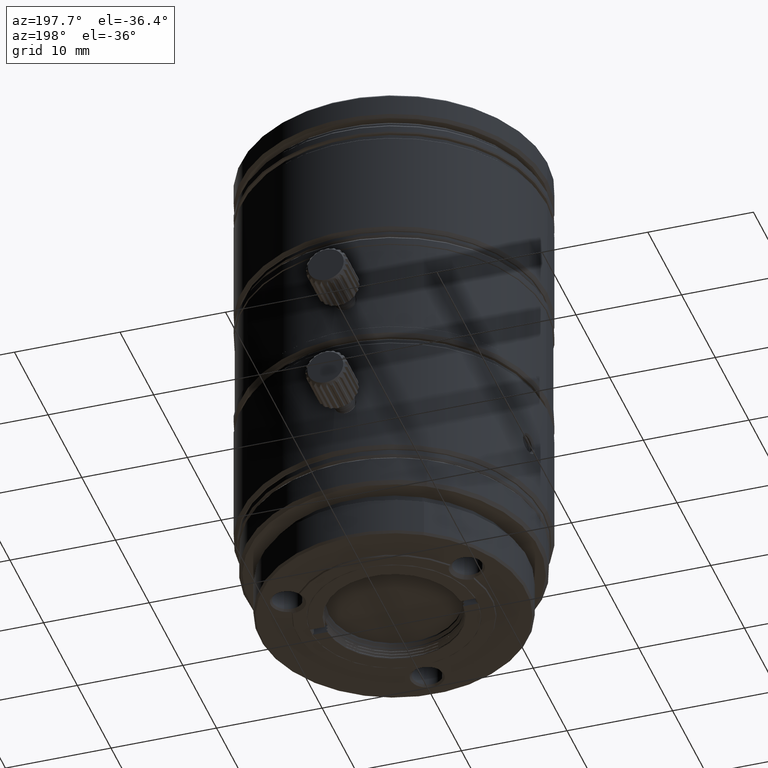
[diagram: clean part render]
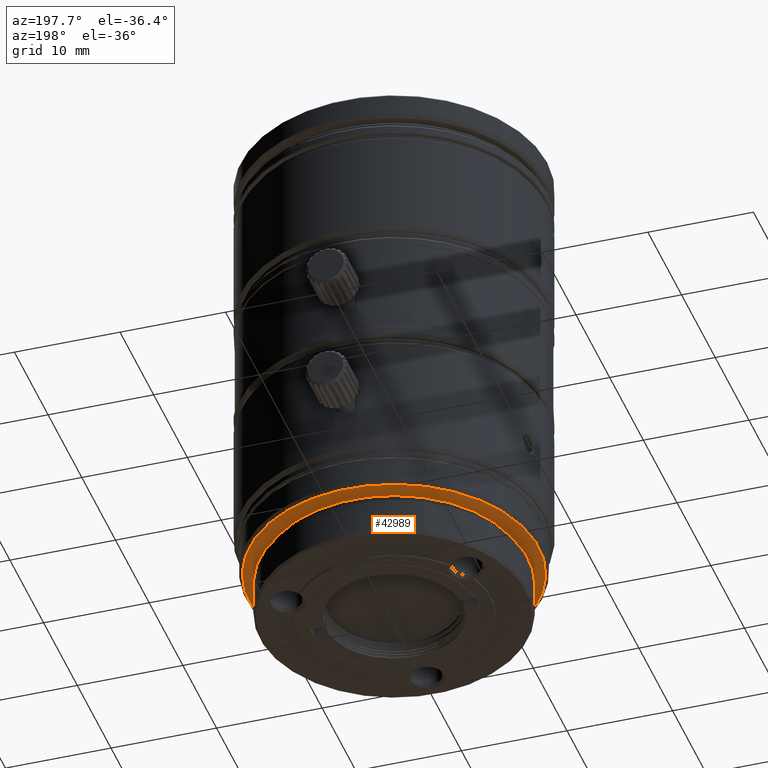
[diagram: same view with one face highlighted and labeled with its STEP entity id]
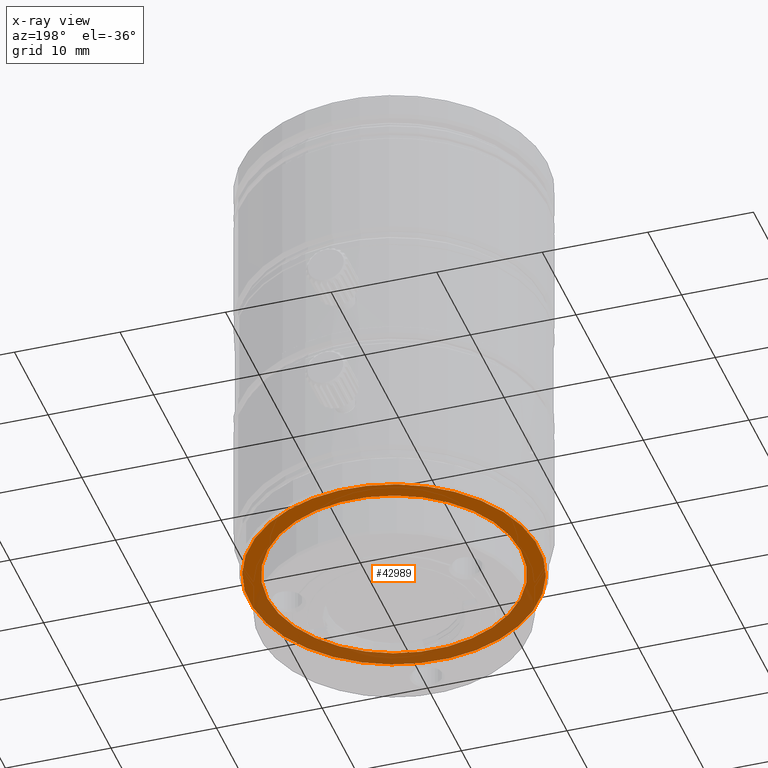
[diagram: x-ray of the same camera — body ghosted, the highlighted face saturated]
A machine part, auxiliary view. The second image highlights one B-rep face of the part: STEP entity #42989.
The next image is the same camera in x-ray: the body ghosted, the highlighted face saturated — about 41% of this face is hidden behind the body in this view.
In plain terms, the highlighted planar face has unit normal (0, 0, 1).
Its self-contained STEP definition (entity closure, byte-faithful):
#755 = CARTESIAN_POINT ( 'NONE',  ( 10.39230496705539863, 6.000000070229679849, -3.487626701506000071 ) ) ;
#1840 = AXIS2_PLACEMENT_3D ( 'NONE', #23124, #19622, #46770 ) ;
#4263 = DIRECTION ( 'NONE',  ( 0.000000000000000000, 0.000000000000000000, 1.000000000000000000 ) ) ;
#4509 = DIRECTION ( 'NONE',  ( 1.000000000000000000, 0.000000000000000000, 0.000000000000000000 ) ) ;
#5231 = CIRCLE ( 'NONE', #6782, 12.00000014045999741 ) ;
#6782 = AXIS2_PLACEMENT_3D ( 'NONE', #7911, #45536, #42056 ) ;
#7439 = CIRCLE ( 'NONE', #1840, 12.00000014045999741 ) ;
#7814 = CIRCLE ( 'NONE', #35663, 13.70000014654999454 ) ;
#7911 = CARTESIAN_POINT ( 'NONE',  ( 0.000000000000000000, 0.000000000000000000, -3.487626701506000071 ) ) ;
#10081 = ORIENTED_EDGE ( 'NONE', *, *, #47399, .F. ) ;
#13493 = DIRECTION ( 'NONE',  ( 0.000000000000000000, 0.000000000000000000, 1.000000000000000000 ) ) ;
#13511 = DIRECTION ( 'NONE',  ( 0.000000000000000000, 0.000000000000000000, 1.000000000000000000 ) ) ;
#15496 = FACE_OUTER_BOUND ( 'NONE', #18080, .T. ) ;
#15656 = EDGE_LOOP ( 'NONE', ( #10081, #38361 ) ) ;
#16117 = VERTEX_POINT ( 'NONE', #48599 ) ;
#18080 = EDGE_LOOP ( 'NONE', ( #26525, #40454 ) ) ;
#18802 = CARTESIAN_POINT ( 'NONE',  ( 6.850000073406264711, -11.86454815899101511, -3.487626701502999804 ) ) ;
#19622 = DIRECTION ( 'NONE',  ( 0.000000000000000000, 0.000000000000000000, -1.000000000000000000 ) ) ;
#21210 = AXIS2_PLACEMENT_3D ( 'NONE', #36444, #13511, #21475 ) ;
#21475 = DIRECTION ( 'NONE',  ( -0.4999999999999731326, 0.8660254037844542507, 0.000000000000000000 ) ) ;
#21993 = CIRCLE ( 'NONE', #21210, 13.70000014654999454 ) ;
#23124 = CARTESIAN_POINT ( 'NONE',  ( 0.000000000000000000, 0.000000000000000000, -3.487626701506000071 ) ) ;
#25641 = EDGE_CURVE ( 'NONE', #16117, #47919, #5231, .T. ) ;
#26452 = PLANE ( 'NONE',  #44113 ) ;
#26525 = ORIENTED_EDGE ( 'NONE', *, *, #29817, .F. ) ;
#27708 = VERTEX_POINT ( 'NONE', #32975 ) ;
#29817 = EDGE_CURVE ( 'NONE', #42815, #27708, #21993, .T. ) ;
#32975 = CARTESIAN_POINT ( 'NONE',  ( -6.850000073406263823, 11.86454815899101867, -3.487626701502999804 ) ) ;
#35663 = AXIS2_PLACEMENT_3D ( 'NONE', #35691, #13493, #43411 ) ;
#35691 = CARTESIAN_POINT ( 'NONE',  ( 0.000000000000000000, 0.000000000000000000, -3.487626701502999804 ) ) ;
#36444 = CARTESIAN_POINT ( 'NONE',  ( 0.000000000000000000, 0.000000000000000000, -3.487626701502999804 ) ) ;
#37677 = EDGE_CURVE ( 'NONE', #27708, #42815, #7814, .T. ) ;
#38361 = ORIENTED_EDGE ( 'NONE', *, *, #25641, .F. ) ;
#40454 = ORIENTED_EDGE ( 'NONE', *, *, #37677, .F. ) ;
#41197 = CARTESIAN_POINT ( 'NONE',  ( 6.000000070229675408, -10.39230496705537554, -3.487626701506000071 ) ) ;
#42056 = DIRECTION ( 'NONE',  ( 0.4999999999999730771, -0.8660254037844541397, 0.000000000000000000 ) ) ;
#42154 = FACE_BOUND ( 'NONE', #15656, .T. ) ;
#42815 = VERTEX_POINT ( 'NONE', #18802 ) ;
#42989 = ADVANCED_FACE ( 'NONE', ( #15496, #42154 ), #26452, .F. ) ;
#43411 = DIRECTION ( 'NONE',  ( -0.4999999999999731326, 0.8660254037844542507, 0.000000000000000000 ) ) ;
#44113 = AXIS2_PLACEMENT_3D ( 'NONE', #755, #4263, #4509 ) ;
#45536 = DIRECTION ( 'NONE',  ( 0.000000000000000000, 0.000000000000000000, -1.000000000000000000 ) ) ;
#46770 = DIRECTION ( 'NONE',  ( 0.4999999999999730771, -0.8660254037844541397, 0.000000000000000000 ) ) ;
#47399 = EDGE_CURVE ( 'NONE', #47919, #16117, #7439, .T. ) ;
#47919 = VERTEX_POINT ( 'NONE', #41197 ) ;
#48599 = CARTESIAN_POINT ( 'NONE',  ( -6.000000070229675408, 10.39230496705537909, -3.487626701506000071 ) ) ;